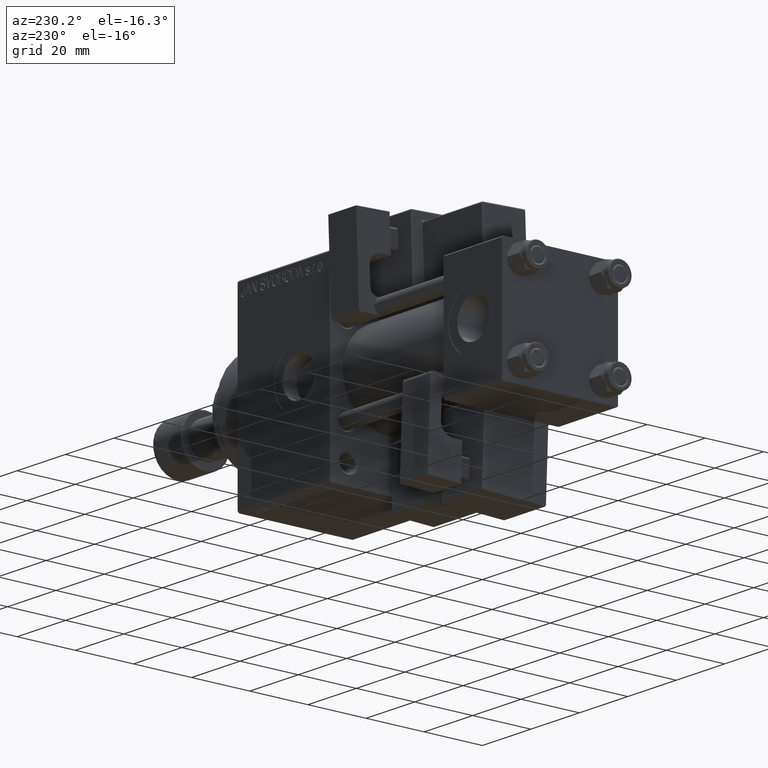
[diagram: clean part render]
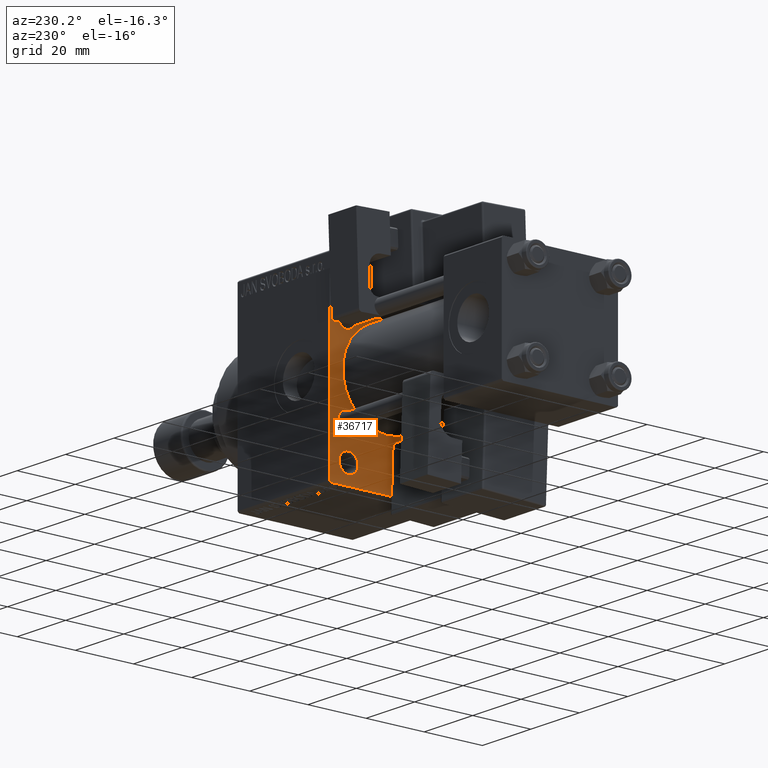
[diagram: same view with one face highlighted and labeled with its STEP entity id]
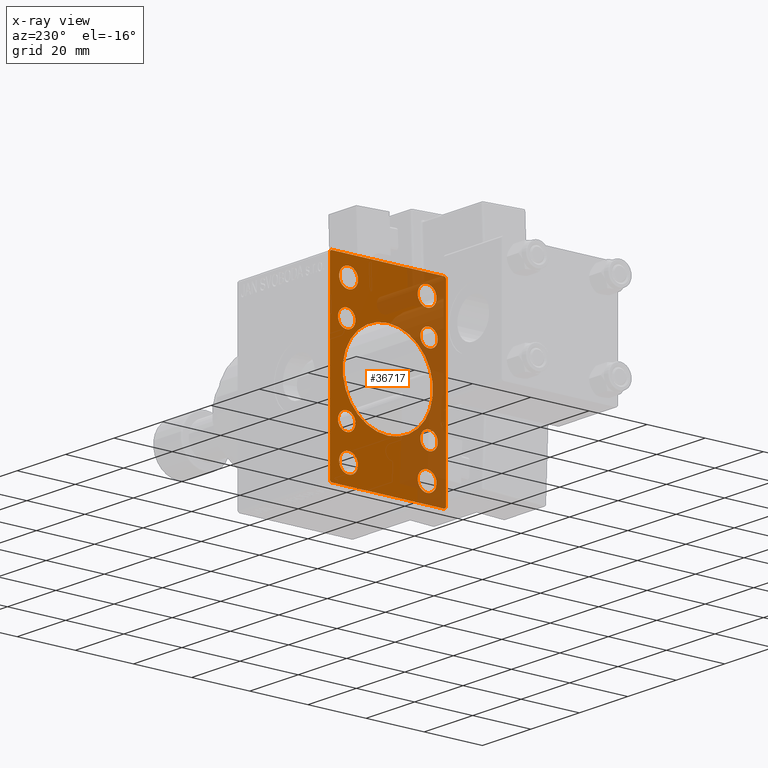
[diagram: x-ray of the same camera — body ghosted, the highlighted face saturated]
A machine part, auxiliary view. The second image highlights one B-rep face of the part: STEP entity #36717.
The next image is the same camera in x-ray: the body ghosted, the highlighted face saturated — about 41% of this face is hidden behind the body in this view.
In plain terms, the highlighted planar face has unit normal (-1, 0, 0).
Its self-contained STEP definition (entity closure, byte-faithful):
#22 = DIRECTION ( 'NONE',  ( 1.000000000000000000, 0.000000000000000000, 0.000000000000000000 ) ) ;
#75 = DIRECTION ( 'NONE',  ( 0.000000000000000000, 0.000000000000000000, -1.000000000000000000 ) ) ;
#478 = EDGE_LOOP ( 'NONE', ( #20147, #32464 ) ) ;
#933 = EDGE_CURVE ( 'NONE', #31535, #25770, #25239, .T. ) ;
#1113 = EDGE_CURVE ( 'NONE', #31121, #8324, #35249, .T. ) ;
#1519 = EDGE_LOOP ( 'NONE', ( #39861, #1957, #18008, #29697, #33816, #42431, #36951, #35636 ) ) ;
#1554 = CARTESIAN_POINT ( 'NONE',  ( 71.00000000000001421, 25.74999999999999645, 25.74999999999999645 ) ) ;
#1663 = VERTEX_POINT ( 'NONE', #10090 ) ;
#1843 = FACE_BOUND ( 'NONE', #25794, .T. ) ;
#1957 = ORIENTED_EDGE ( 'NONE', *, *, #30519, .T. ) ;
#1999 = AXIS2_PLACEMENT_3D ( 'NONE', #34445, #6092, #50327 ) ;
#2343 = VERTEX_POINT ( 'NONE', #27043 ) ;
#2487 = CARTESIAN_POINT ( 'NONE',  ( 71.00000000000001421, -13.50000000000000533, -25.49999999999999645 ) ) ;
#2687 = CARTESIAN_POINT ( 'NONE',  ( 71.00000000000001421, 13.49999999999999822, 22.24999999999998934 ) ) ;
#2927 = CIRCLE ( 'NONE', #7093, 3.000000000000004441 ) ;
#2942 = AXIS2_PLACEMENT_3D ( 'NONE', #29554, #9530, #45435 ) ;
#3479 = CARTESIAN_POINT ( 'NONE',  ( 71.00000000000001421, 20.00000000000000000, -32.00000000000000000 ) ) ;
#3505 = CARTESIAN_POINT ( 'NONE',  ( 71.00000000000001421, 13.49999999999999822, 25.50000000000000355 ) ) ;
#3842 = DIRECTION ( 'NONE',  ( -0.000000000000000000, 0.7071067811865474617, 0.7071067811865474617 ) ) ;
#3888 = CIRCLE ( 'NONE', #37953, 3.000000000000004441 ) ;
#4096 = LINE ( 'NONE', #39240, #4654 ) ;
#4654 = VECTOR ( 'NONE', #3842, 1000.000000000000114 ) ;
#4679 = CARTESIAN_POINT ( 'NONE',  ( 71.00000000000001421, -14.15000000000000036, 17.15000000000000568 ) ) ;
#4793 = DIRECTION ( 'NONE',  ( 0.000000000000000000, -0.7071067811865426878, 0.7071067811865524577 ) ) ;
#5199 = CARTESIAN_POINT ( 'NONE',  ( 71.00000000000001421, -13.50000000000000178, 28.75000000000001776 ) ) ;
#5418 = CIRCLE ( 'NONE', #2942, 3.250000000000016875 ) ;
#5541 = CARTESIAN_POINT ( 'NONE',  ( 71.00000000000001421, -7.038826752868131828E-16, -15.50000000000000000 ) ) ;
#5704 = EDGE_CURVE ( 'NONE', #11356, #44646, #19526, .T. ) ;
#5887 = DIRECTION ( 'NONE',  ( 0.000000000000000000, 0.000000000000000000, 1.000000000000000000 ) ) ;
#6092 = DIRECTION ( 'NONE',  ( 1.000000000000000000, 0.000000000000000000, 0.000000000000000000 ) ) ;
#6095 = CARTESIAN_POINT ( 'NONE',  ( 71.00000000000001421, -14.15000000000000036, -11.14999999999999680 ) ) ;
#6138 = EDGE_CURVE ( 'NONE', #6218, #9262, #44477, .T. ) ;
#6218 = VERTEX_POINT ( 'NONE', #5541 ) ;
#6246 = EDGE_CURVE ( 'NONE', #9262, #6218, #14548, .T. ) ;
#6857 = CARTESIAN_POINT ( 'NONE',  ( 71.00000000000001421, -13.50000000000000533, -28.75000000000001066 ) ) ;
#6976 = ORIENTED_EDGE ( 'NONE', *, *, #13503, .T. ) ;
#7027 = ORIENTED_EDGE ( 'NONE', *, *, #27652, .T. ) ;
#7054 = AXIS2_PLACEMENT_3D ( 'NONE', #35933, #22, #47153 ) ;
#7093 = AXIS2_PLACEMENT_3D ( 'NONE', #18370, #49086, #5887 ) ;
#7408 = DIRECTION ( 'NONE',  ( 1.000000000000000000, 0.000000000000000000, 0.000000000000000000 ) ) ;
#7543 = EDGE_CURVE ( 'NONE', #9690, #24288, #44457, .T. ) ;
#7642 = EDGE_CURVE ( 'NONE', #19958, #30779, #44518, .T. ) ;
#7824 = AXIS2_PLACEMENT_3D ( 'NONE', #16971, #12562, #44824 ) ;
#8182 = EDGE_LOOP ( 'NONE', ( #29001, #22818 ) ) ;
#8324 = VERTEX_POINT ( 'NONE', #6857 ) ;
#8423 = VERTEX_POINT ( 'NONE', #9399 ) ;
#8555 = CARTESIAN_POINT ( 'NONE',  ( 71.00000000000001421, -20.00000000000000000, 31.99999999999999289 ) ) ;
#9011 = EDGE_CURVE ( 'NONE', #8423, #24288, #4096, .T. ) ;
#9262 = VERTEX_POINT ( 'NONE', #27458 ) ;
#9325 = ORIENTED_EDGE ( 'NONE', *, *, #30134, .T. ) ;
#9399 = CARTESIAN_POINT ( 'NONE',  ( 71.00000000000001421, -20.00000000000000000, 31.49999999999997868 ) ) ;
#9460 = EDGE_LOOP ( 'NONE', ( #9878, #7027 ) ) ;
#9530 = DIRECTION ( 'NONE',  ( 1.000000000000000000, 0.000000000000000000, 0.000000000000000000 ) ) ;
#9615 = CARTESIAN_POINT ( 'NONE',  ( 71.00000000000001421, 19.49999999999998579, 32.00000000000000000 ) ) ;
#9656 = FACE_BOUND ( 'NONE', #8182, .T. ) ;
#9690 = VERTEX_POINT ( 'NONE', #9615 ) ;
#9784 = DIRECTION ( 'NONE',  ( 1.000000000000000000, 0.000000000000000000, 0.000000000000000000 ) ) ;
#9878 = ORIENTED_EDGE ( 'NONE', *, *, #27835, .T. ) ;
#9980 = DIRECTION ( 'NONE',  ( 1.000000000000000000, 0.000000000000000000, 0.000000000000000000 ) ) ;
#10009 = DIRECTION ( 'NONE',  ( 0.000000000000000000, 0.000000000000000000, -1.000000000000000000 ) ) ;
#10090 = CARTESIAN_POINT ( 'NONE',  ( 71.00000000000001421, -20.00000000000000000, -31.49999999999997868 ) ) ;
#11171 = ORIENTED_EDGE ( 'NONE', *, *, #933, .T. ) ;
#11356 = VERTEX_POINT ( 'NONE', #19264 ) ;
#11555 = CARTESIAN_POINT ( 'NONE',  ( 71.00000000000001421, -2.602085213965210642E-15, 0.000000000000000000 ) ) ;
#12253 = ORIENTED_EDGE ( 'NONE', *, *, #41057, .T. ) ;
#12532 = ORIENTED_EDGE ( 'NONE', *, *, #6246, .T. ) ;
#12562 = DIRECTION ( 'NONE',  ( 1.000000000000000000, 0.000000000000000000, 0.000000000000000000 ) ) ;
#12621 = CARTESIAN_POINT ( 'NONE',  ( 71.00000000000001421, -19.49999999999998579, -32.00000000000000000 ) ) ;
#12627 = DIRECTION ( 'NONE',  ( 0.000000000000000000, 0.000000000000000000, 1.000000000000000000 ) ) ;
#12701 = CARTESIAN_POINT ( 'NONE',  ( 71.00000000000001421, 20.00000000000000000, 32.00000000000000000 ) ) ;
#13503 = EDGE_CURVE ( 'NONE', #25770, #31535, #24879, .T. ) ;
#13803 = FACE_BOUND ( 'NONE', #47853, .T. ) ;
#14069 = DIRECTION ( 'NONE',  ( -1.000000000000000000, 0.000000000000000000, -0.000000000000000000 ) ) ;
#14192 = DIRECTION ( 'NONE',  ( 0.000000000000000000, 0.000000000000000000, 1.000000000000000000 ) ) ;
#14319 = FACE_BOUND ( 'NONE', #28874, .T. ) ;
#14548 = CIRCLE ( 'NONE', #24526, 15.50000000000000000 ) ;
#14941 = DIRECTION ( 'NONE',  ( 0.000000000000000000, -1.000000000000000000, 0.000000000000000000 ) ) ;
#15316 = DIRECTION ( 'NONE',  ( 1.000000000000000000, 0.000000000000000000, 0.000000000000000000 ) ) ;
#15565 = AXIS2_PLACEMENT_3D ( 'NONE', #36056, #47775, #12627 ) ;
#15963 = EDGE_CURVE ( 'NONE', #8324, #31121, #20802, .T. ) ;
#16426 = VECTOR ( 'NONE', #46759, 1000.000000000000114 ) ;
#16959 = CARTESIAN_POINT ( 'NONE',  ( 71.00000000000001421, -19.49999999999998579, 31.99999999999999289 ) ) ;
#16971 = CARTESIAN_POINT ( 'NONE',  ( 71.00000000000001421, -14.15000000000000036, -14.15000000000000036 ) ) ;
#17010 = LINE ( 'NONE', #37310, #49520 ) ;
#17400 = EDGE_CURVE ( 'NONE', #8423, #1663, #28583, .T. ) ;
#17463 = AXIS2_PLACEMENT_3D ( 'NONE', #2487, #9784, #14192 ) ;
#17512 = DIRECTION ( 'NONE',  ( 0.000000000000000000, 0.000000000000000000, 1.000000000000000000 ) ) ;
#17716 = CARTESIAN_POINT ( 'NONE',  ( 71.00000000000001421, 19.49999999999998579, -32.00000000000000000 ) ) ;
#17799 = CARTESIAN_POINT ( 'NONE',  ( 71.00000000000001421, 20.00000000000000000, 32.00000000000000000 ) ) ;
#18008 = ORIENTED_EDGE ( 'NONE', *, *, #17400, .F. ) ;
#18269 = EDGE_LOOP ( 'NONE', ( #9325, #46331 ) ) ;
#18370 = CARTESIAN_POINT ( 'NONE',  ( 71.00000000000001421, -14.15000000000000036, 14.15000000000000036 ) ) ;
#18414 = VERTEX_POINT ( 'NONE', #38742 ) ;
#18456 = EDGE_LOOP ( 'NONE', ( #29584, #19792 ) ) ;
#18713 = AXIS2_PLACEMENT_3D ( 'NONE', #25533, #41414, #49475 ) ;
#18754 = VECTOR ( 'NONE', #21291, 1000.000000000000000 ) ;
#19264 = CARTESIAN_POINT ( 'NONE',  ( 71.00000000000001421, 14.15000000000000036, 11.14999999999999680 ) ) ;
#19448 = EDGE_CURVE ( 'NONE', #25512, #21876, #43361, .T. ) ;
#19526 = CIRCLE ( 'NONE', #7054, 3.000000000000004441 ) ;
#19792 = ORIENTED_EDGE ( 'NONE', *, *, #5704, .T. ) ;
#19913 = VERTEX_POINT ( 'NONE', #12621 ) ;
#19958 = VERTEX_POINT ( 'NONE', #2687 ) ;
#20147 = ORIENTED_EDGE ( 'NONE', *, *, #19448, .T. ) ;
#20581 = EDGE_CURVE ( 'NONE', #32556, #23643, #37573, .T. ) ;
#20802 = CIRCLE ( 'NONE', #17463, 3.250000000000016875 ) ;
#20910 = AXIS2_PLACEMENT_3D ( 'NONE', #51224, #15316, #38752 ) ;
#21083 = ORIENTED_EDGE ( 'NONE', *, *, #1113, .T. ) ;
#21094 = VERTEX_POINT ( 'NONE', #4679 ) ;
#21095 = EDGE_CURVE ( 'NONE', #9690, #32556, #44749, .T. ) ;
#21291 = DIRECTION ( 'NONE',  ( 0.000000000000000000, -1.000000000000000000, -1.734723475976807094E-16 ) ) ;
#21840 = DIRECTION ( 'NONE',  ( 0.000000000000000000, 0.7071067811865474617, -0.7071067811865474617 ) ) ;
#21872 = FACE_BOUND ( 'NONE', #478, .T. ) ;
#21876 = VERTEX_POINT ( 'NONE', #34924 ) ;
#21946 = CIRCLE ( 'NONE', #44379, 3.000000000000004441 ) ;
#22420 = CARTESIAN_POINT ( 'NONE',  ( 71.00000000000001421, -14.15000000000000036, 14.15000000000000036 ) ) ;
#22512 = DIRECTION ( 'NONE',  ( 1.000000000000000000, 0.000000000000000000, 0.000000000000000000 ) ) ;
#22818 = ORIENTED_EDGE ( 'NONE', *, *, #41913, .T. ) ;
#23034 = AXIS2_PLACEMENT_3D ( 'NONE', #38044, #45581, #41683 ) ;
#23643 = VERTEX_POINT ( 'NONE', #28279 ) ;
#24288 = VERTEX_POINT ( 'NONE', #16959 ) ;
#24526 = AXIS2_PLACEMENT_3D ( 'NONE', #40144, #49250, #48995 ) ;
#24879 = CIRCLE ( 'NONE', #50688, 3.000000000000004441 ) ;
#25239 = CIRCLE ( 'NONE', #7824, 3.000000000000004441 ) ;
#25387 = AXIS2_PLACEMENT_3D ( 'NONE', #3505, #22512, #50107 ) ;
#25482 = VERTEX_POINT ( 'NONE', #28108 ) ;
#25499 = CARTESIAN_POINT ( 'NONE',  ( 71.00000000000001421, 13.49999999999999822, -28.75000000000001421 ) ) ;
#25512 = VERTEX_POINT ( 'NONE', #5199 ) ;
#25527 = CARTESIAN_POINT ( 'NONE',  ( 71.00000000000001421, 0.000000000000000000, 0.000000000000000000 ) ) ;
#25533 = CARTESIAN_POINT ( 'NONE',  ( 71.00000000000001421, 13.49999999999999822, -25.50000000000000000 ) ) ;
#25770 = VERTEX_POINT ( 'NONE', #41285 ) ;
#25794 = EDGE_LOOP ( 'NONE', ( #12532, #29424 ) ) ;
#26060 = DIRECTION ( 'NONE',  ( 1.000000000000000000, 0.000000000000000000, 0.000000000000000000 ) ) ;
#26169 = CIRCLE ( 'NONE', #18713, 3.250000000000016875 ) ;
#26318 = DIRECTION ( 'NONE',  ( 0.000000000000000000, 0.000000000000000000, 1.000000000000000000 ) ) ;
#26331 = AXIS2_PLACEMENT_3D ( 'NONE', #25527, #14069, #49466 ) ;
#26978 = CARTESIAN_POINT ( 'NONE',  ( 71.00000000000001421, 14.15000000000000036, -11.14999999999999680 ) ) ;
#27043 = CARTESIAN_POINT ( 'NONE',  ( 71.00000000000001421, 14.15000000000000036, -17.15000000000000568 ) ) ;
#27458 = CARTESIAN_POINT ( 'NONE',  ( 71.00000000000001421, -2.602085213965210642E-15, 15.50000000000000000 ) ) ;
#27652 = EDGE_CURVE ( 'NONE', #2343, #51375, #48547, .T. ) ;
#27835 = EDGE_CURVE ( 'NONE', #51375, #2343, #21946, .T. ) ;
#27890 = EDGE_CURVE ( 'NONE', #21094, #18414, #47723, .T. ) ;
#28108 = CARTESIAN_POINT ( 'NONE',  ( 71.00000000000001421, 13.49999999999999822, -22.24999999999998224 ) ) ;
#28279 = CARTESIAN_POINT ( 'NONE',  ( 71.00000000000001421, 20.00000000000000000, -31.49999999999998579 ) ) ;
#28432 = VECTOR ( 'NONE', #10009, 1000.000000000000000 ) ;
#28583 = LINE ( 'NONE', #8555, #34155 ) ;
#28874 = EDGE_LOOP ( 'NONE', ( #30936, #12253 ) ) ;
#29001 = ORIENTED_EDGE ( 'NONE', *, *, #27890, .T. ) ;
#29424 = ORIENTED_EDGE ( 'NONE', *, *, #6138, .T. ) ;
#29554 = CARTESIAN_POINT ( 'NONE',  ( 71.00000000000001421, 13.49999999999999822, 25.50000000000000355 ) ) ;
#29584 = ORIENTED_EDGE ( 'NONE', *, *, #36489, .T. ) ;
#29697 = ORIENTED_EDGE ( 'NONE', *, *, #9011, .T. ) ;
#29935 = FACE_OUTER_BOUND ( 'NONE', #1519, .T. ) ;
#30134 = EDGE_CURVE ( 'NONE', #30779, #19958, #5418, .T. ) ;
#30447 = PLANE ( 'NONE',  #26331 ) ;
#30476 = CARTESIAN_POINT ( 'NONE',  ( 71.00000000000001421, -14.15000000000000036, -14.15000000000000036 ) ) ;
#30495 = DIRECTION ( 'NONE',  ( 0.000000000000000000, 0.000000000000000000, 1.000000000000000000 ) ) ;
#30519 = EDGE_CURVE ( 'NONE', #19913, #1663, #17010, .T. ) ;
#30551 = LINE ( 'NONE', #3479, #46306 ) ;
#30779 = VERTEX_POINT ( 'NONE', #31794 ) ;
#30884 = CARTESIAN_POINT ( 'NONE',  ( 71.00000000000001421, 25.74999999999999645, -25.74999999999999645 ) ) ;
#30936 = ORIENTED_EDGE ( 'NONE', *, *, #33273, .T. ) ;
#31121 = VERTEX_POINT ( 'NONE', #40319 ) ;
#31535 = VERTEX_POINT ( 'NONE', #6095 ) ;
#31794 = CARTESIAN_POINT ( 'NONE',  ( 71.00000000000001421, 13.49999999999999822, 28.75000000000002132 ) ) ;
#31885 = AXIS2_PLACEMENT_3D ( 'NONE', #34151, #34402, #30495 ) ;
#32464 = ORIENTED_EDGE ( 'NONE', *, *, #34735, .T. ) ;
#32556 = VERTEX_POINT ( 'NONE', #49690 ) ;
#32831 = CARTESIAN_POINT ( 'NONE',  ( 71.00000000000001421, 14.15000000000000036, -14.15000000000000036 ) ) ;
#32851 = AXIS2_PLACEMENT_3D ( 'NONE', #11555, #7408, #75 ) ;
#33273 = EDGE_CURVE ( 'NONE', #25482, #45368, #47145, .T. ) ;
#33816 = ORIENTED_EDGE ( 'NONE', *, *, #7543, .F. ) ;
#33854 = FACE_BOUND ( 'NONE', #9460, .T. ) ;
#34151 = CARTESIAN_POINT ( 'NONE',  ( 71.00000000000001421, -13.50000000000000533, -25.49999999999999645 ) ) ;
#34155 = VECTOR ( 'NONE', #36155, 1000.000000000000000 ) ;
#34402 = DIRECTION ( 'NONE',  ( 1.000000000000000000, 0.000000000000000000, 0.000000000000000000 ) ) ;
#34445 = CARTESIAN_POINT ( 'NONE',  ( 71.00000000000001421, 14.15000000000000036, -14.15000000000000036 ) ) ;
#34735 = EDGE_CURVE ( 'NONE', #21876, #25512, #43825, .T. ) ;
#34924 = CARTESIAN_POINT ( 'NONE',  ( 71.00000000000001421, -13.50000000000000178, 22.24999999999998579 ) ) ;
#35249 = CIRCLE ( 'NONE', #31885, 3.250000000000016875 ) ;
#35636 = ORIENTED_EDGE ( 'NONE', *, *, #51403, .T. ) ;
#35668 = CARTESIAN_POINT ( 'NONE',  ( 71.00000000000001421, 14.15000000000000036, 17.15000000000000568 ) ) ;
#35933 = CARTESIAN_POINT ( 'NONE',  ( 71.00000000000001421, 14.15000000000000036, 14.15000000000000036 ) ) ;
#36056 = CARTESIAN_POINT ( 'NONE',  ( 71.00000000000001421, -13.50000000000000178, 25.50000000000000355 ) ) ;
#36155 = DIRECTION ( 'NONE',  ( 0.000000000000000000, 0.000000000000000000, -1.000000000000000000 ) ) ;
#36489 = EDGE_CURVE ( 'NONE', #44646, #11356, #3888, .T. ) ;
#36717 = ADVANCED_FACE ( 'NONE', ( #21872, #42180, #14319, #41655, #9656, #41917, #33854, #13803, #1843, #29935 ), #30447, .T. ) ;
#36951 = ORIENTED_EDGE ( 'NONE', *, *, #20581, .T. ) ;
#36988 = DIRECTION ( 'NONE',  ( 0.000000000000000000, 0.000000000000000000, 1.000000000000000000 ) ) ;
#37310 = CARTESIAN_POINT ( 'NONE',  ( 71.00000000000001421, -25.75000000000012790, -25.74999999999977263 ) ) ;
#37573 = LINE ( 'NONE', #17799, #28432 ) ;
#37953 = AXIS2_PLACEMENT_3D ( 'NONE', #50304, #9980, #17512 ) ;
#38044 = CARTESIAN_POINT ( 'NONE',  ( 71.00000000000001421, 13.49999999999999822, -25.50000000000000000 ) ) ;
#38547 = DIRECTION ( 'NONE',  ( 0.000000000000000000, 0.000000000000000000, 1.000000000000000000 ) ) ;
#38707 = LINE ( 'NONE', #30884, #16426 ) ;
#38742 = CARTESIAN_POINT ( 'NONE',  ( 71.00000000000001421, -14.15000000000000036, 11.14999999999999503 ) ) ;
#38752 = DIRECTION ( 'NONE',  ( 0.000000000000000000, 0.000000000000000000, 1.000000000000000000 ) ) ;
#39240 = CARTESIAN_POINT ( 'NONE',  ( 71.00000000000001421, -25.74999999999998934, 25.74999999999998934 ) ) ;
#39405 = AXIS2_PLACEMENT_3D ( 'NONE', #22420, #26060, #26318 ) ;
#39861 = ORIENTED_EDGE ( 'NONE', *, *, #46010, .T. ) ;
#40144 = CARTESIAN_POINT ( 'NONE',  ( 71.00000000000001421, -2.602085213965210642E-15, 0.000000000000000000 ) ) ;
#40319 = CARTESIAN_POINT ( 'NONE',  ( 71.00000000000001421, -13.50000000000000533, -22.24999999999997868 ) ) ;
#41057 = EDGE_CURVE ( 'NONE', #45368, #25482, #26169, .T. ) ;
#41094 = VERTEX_POINT ( 'NONE', #17716 ) ;
#41285 = CARTESIAN_POINT ( 'NONE',  ( 71.00000000000001421, -14.15000000000000036, -17.15000000000000568 ) ) ;
#41325 = EDGE_LOOP ( 'NONE', ( #21083, #48303 ) ) ;
#41414 = DIRECTION ( 'NONE',  ( 1.000000000000000000, 0.000000000000000000, 0.000000000000000000 ) ) ;
#41655 = FACE_BOUND ( 'NONE', #18269, .T. ) ;
#41683 = DIRECTION ( 'NONE',  ( 0.000000000000000000, 0.000000000000000000, 1.000000000000000000 ) ) ;
#41913 = EDGE_CURVE ( 'NONE', #18414, #21094, #2927, .T. ) ;
#41917 = FACE_BOUND ( 'NONE', #18456, .T. ) ;
#42180 = FACE_BOUND ( 'NONE', #41325, .T. ) ;
#42431 = ORIENTED_EDGE ( 'NONE', *, *, #21095, .T. ) ;
#43361 = CIRCLE ( 'NONE', #20910, 3.250000000000016875 ) ;
#43825 = CIRCLE ( 'NONE', #15565, 3.250000000000016875 ) ;
#44379 = AXIS2_PLACEMENT_3D ( 'NONE', #32831, #48975, #36988 ) ;
#44457 = LINE ( 'NONE', #12701, #18754 ) ;
#44477 = CIRCLE ( 'NONE', #32851, 15.50000000000000000 ) ;
#44518 = CIRCLE ( 'NONE', #25387, 3.250000000000016875 ) ;
#44646 = VERTEX_POINT ( 'NONE', #35668 ) ;
#44749 = LINE ( 'NONE', #1554, #50094 ) ;
#44824 = DIRECTION ( 'NONE',  ( 0.000000000000000000, 0.000000000000000000, 1.000000000000000000 ) ) ;
#45368 = VERTEX_POINT ( 'NONE', #25499 ) ;
#45435 = DIRECTION ( 'NONE',  ( 0.000000000000000000, 0.000000000000000000, 1.000000000000000000 ) ) ;
#45581 = DIRECTION ( 'NONE',  ( 1.000000000000000000, 0.000000000000000000, 0.000000000000000000 ) ) ;
#46010 = EDGE_CURVE ( 'NONE', #41094, #19913, #30551, .T. ) ;
#46306 = VECTOR ( 'NONE', #14941, 1000.000000000000000 ) ;
#46331 = ORIENTED_EDGE ( 'NONE', *, *, #7642, .T. ) ;
#46759 = DIRECTION ( 'NONE',  ( -0.000000000000000000, -0.7071067811865474617, -0.7071067811865474617 ) ) ;
#47145 = CIRCLE ( 'NONE', #23034, 3.250000000000016875 ) ;
#47153 = DIRECTION ( 'NONE',  ( 0.000000000000000000, 0.000000000000000000, 1.000000000000000000 ) ) ;
#47379 = DIRECTION ( 'NONE',  ( 1.000000000000000000, 0.000000000000000000, 0.000000000000000000 ) ) ;
#47723 = CIRCLE ( 'NONE', #39405, 3.000000000000004441 ) ;
#47775 = DIRECTION ( 'NONE',  ( 1.000000000000000000, 0.000000000000000000, 0.000000000000000000 ) ) ;
#47853 = EDGE_LOOP ( 'NONE', ( #11171, #6976 ) ) ;
#48303 = ORIENTED_EDGE ( 'NONE', *, *, #15963, .T. ) ;
#48547 = CIRCLE ( 'NONE', #1999, 3.000000000000004441 ) ;
#48975 = DIRECTION ( 'NONE',  ( 1.000000000000000000, 0.000000000000000000, 0.000000000000000000 ) ) ;
#48995 = DIRECTION ( 'NONE',  ( 0.000000000000000000, 0.000000000000000000, -1.000000000000000000 ) ) ;
#49086 = DIRECTION ( 'NONE',  ( 1.000000000000000000, 0.000000000000000000, 0.000000000000000000 ) ) ;
#49250 = DIRECTION ( 'NONE',  ( 1.000000000000000000, 0.000000000000000000, 0.000000000000000000 ) ) ;
#49466 = DIRECTION ( 'NONE',  ( -0.000000000000000000, 0.000000000000000000, 1.000000000000000000 ) ) ;
#49475 = DIRECTION ( 'NONE',  ( 0.000000000000000000, 0.000000000000000000, 1.000000000000000000 ) ) ;
#49520 = VECTOR ( 'NONE', #4793, 1000.000000000000000 ) ;
#49690 = CARTESIAN_POINT ( 'NONE',  ( 71.00000000000001421, 20.00000000000000000, 31.49999999999998579 ) ) ;
#50094 = VECTOR ( 'NONE', #21840, 1000.000000000000114 ) ;
#50107 = DIRECTION ( 'NONE',  ( 0.000000000000000000, 0.000000000000000000, 1.000000000000000000 ) ) ;
#50304 = CARTESIAN_POINT ( 'NONE',  ( 71.00000000000001421, 14.15000000000000036, 14.15000000000000036 ) ) ;
#50327 = DIRECTION ( 'NONE',  ( 0.000000000000000000, 0.000000000000000000, 1.000000000000000000 ) ) ;
#50688 = AXIS2_PLACEMENT_3D ( 'NONE', #30476, #47379, #38547 ) ;
#51224 = CARTESIAN_POINT ( 'NONE',  ( 71.00000000000001421, -13.50000000000000178, 25.50000000000000355 ) ) ;
#51375 = VERTEX_POINT ( 'NONE', #26978 ) ;
#51403 = EDGE_CURVE ( 'NONE', #23643, #41094, #38707, .T. ) ;